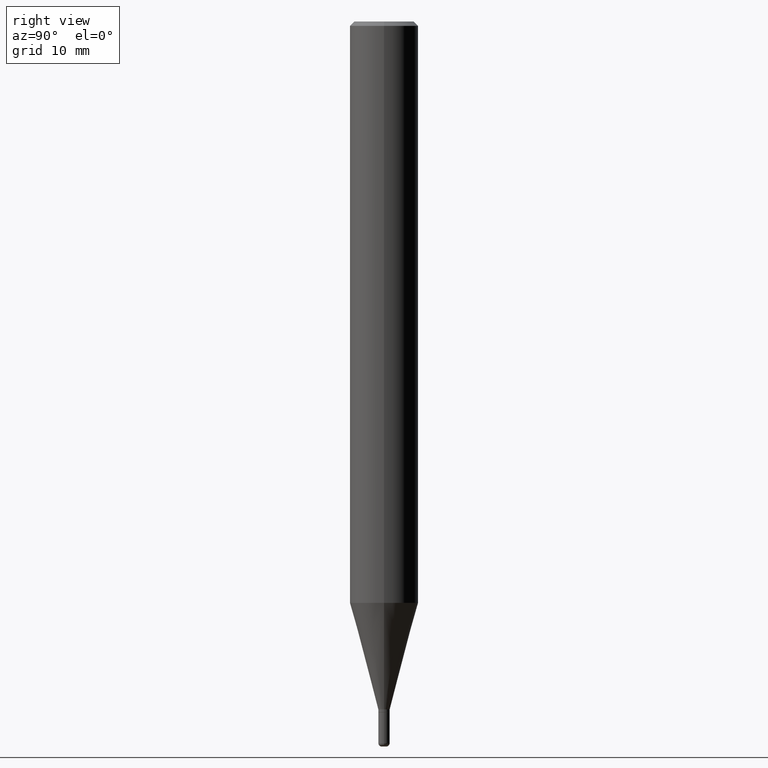
[diagram: clean part render]
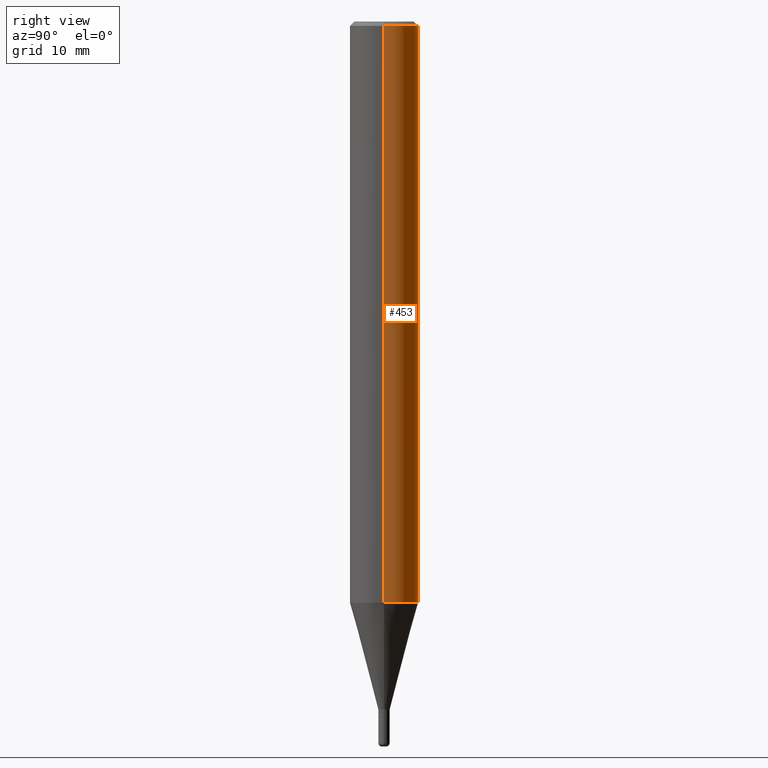
[diagram: same view with one face highlighted and labeled with its STEP entity id]
A machine part, right view. The second image highlights one B-rep face of the part: STEP entity #453.
In plain terms, the highlighted cylindrical surface (edge-blend (fillet) strip) has radius 2.9997 mm, axis along (-0, 0, 1).
Its self-contained STEP definition (entity closure, byte-faithful):
#30 = ORIENTED_EDGE ( 'NONE', *, *, #186, .F. ) ;
#51 = AXIS2_PLACEMENT_3D ( 'NONE', #350, #497, #137 ) ;
#63 = CARTESIAN_POINT ( 'NONE',  ( -0.1180999999999999966, -2.686662453997805181E-15, -0.01499999999999995781 ) ) ;
#65 = ORIENTED_EDGE ( 'NONE', *, *, #469, .T. ) ;
#66 = CARTESIAN_POINT ( 'NONE',  ( 0.1180999999999999966, -8.246878922347480654E-16, 5.758764772215000440E-30 ) ) ;
#93 = CIRCLE ( 'NONE', #386, 0.1180999999999999966 ) ;
#95 = LINE ( 'NONE', #302, #403 ) ;
#100 = VERTEX_POINT ( 'NONE', #63 ) ;
#127 = VERTEX_POINT ( 'NONE', #384 ) ;
#128 = VERTEX_POINT ( 'NONE', #425 ) ;
#137 = DIRECTION ( 'NONE',  ( 1.000000000000000000, -6.982962677686266711E-15, 4.876176775795936353E-29 ) ) ;
#141 = CYLINDRICAL_SURFACE ( 'NONE', #51, 0.1180999999999999966 ) ;
#154 = EDGE_LOOP ( 'NONE', ( #228, #65, #309, #30 ) ) ;
#169 = DIRECTION ( 'NONE',  ( 1.000000000000000000, -6.982962677686265133E-15, 0.000000000000000000 ) ) ;
#186 = EDGE_CURVE ( 'NONE', #474, #127, #222, .T. ) ;
#213 = DIRECTION ( 'NONE',  ( 1.000000000000000000, -6.982962677686266711E-15, 0.000000000000000000 ) ) ;
#216 = AXIS2_PLACEMENT_3D ( 'NONE', #219, #412, #213 ) ;
#219 = CARTESIAN_POINT ( 'NONE',  ( 3.668203209277694140E-31, -5.237222008264703607E-17, -0.01499999999999995781 ) ) ;
#222 = LINE ( 'NONE', #66, #363 ) ;
#227 = CARTESIAN_POINT ( 'NONE',  ( 0.1180999999999999966, -7.823942522013067545E-15, -2.004666200535222487 ) ) ;
#228 = ORIENTED_EDGE ( 'NONE', *, *, #427, .T. ) ;
#239 = EDGE_CURVE ( 'NONE', #127, #100, #347, .T. ) ;
#252 = DIRECTION ( 'NONE',  ( -2.445468806185136877E-29, 3.491481338843145188E-15, 1.000000000000000000 ) ) ;
#264 = DIRECTION ( 'NONE',  ( -2.445468806185136597E-29, 3.491481338843145583E-15, 1.000000000000000000 ) ) ;
#302 = CARTESIAN_POINT ( 'NONE',  ( -0.1180999999999999966, 8.391509709326782957E-16, -5.809262341591043784E-30 ) ) ;
#309 = ORIENTED_EDGE ( 'NONE', *, *, #239, .F. ) ;
#344 = FACE_OUTER_BOUND ( 'NONE', #154, .T. ) ;
#347 = CIRCLE ( 'NONE', #216, 0.1180999999999999966 ) ;
#350 = CARTESIAN_POINT ( 'NONE',  ( 0.000000000000000000, 0.000000000000000000, 0.000000000000000000 ) ) ;
#363 = VECTOR ( 'NONE', #252, 39.37007874015748143 ) ;
#384 = CARTESIAN_POINT ( 'NONE',  ( 0.1180999999999999966, -8.770601123173951446E-16, -0.01499999999999995781 ) ) ;
#386 = AXIS2_PLACEMENT_3D ( 'NONE', #495, #264, #169 ) ;
#403 = VECTOR ( 'NONE', #465, 39.37007874015748143 ) ;
#412 = DIRECTION ( 'NONE',  ( -2.445468806185136597E-29, 3.491481338843145583E-15, 1.000000000000000000 ) ) ;
#425 = CARTESIAN_POINT ( 'NONE',  ( -0.1180999999999999966, -6.160103658845641874E-15, -2.004666200535222487 ) ) ;
#427 = EDGE_CURVE ( 'NONE', #474, #128, #93, .T. ) ;
#453 = ADVANCED_FACE ( 'NONE', ( #344 ), #141, .T. ) ;
#465 = DIRECTION ( 'NONE',  ( -2.445468806185136877E-29, 3.491481338843145188E-15, 1.000000000000000000 ) ) ;
#469 = EDGE_CURVE ( 'NONE', #128, #100, #95, .T. ) ;
#474 = VERTEX_POINT ( 'NONE', #227 ) ;
#495 = CARTESIAN_POINT ( 'NONE',  ( 4.902348660222563893E-29, -6.999254629778320071E-15, -2.004666200535222487 ) ) ;
#497 = DIRECTION ( 'NONE',  ( -2.445468806185136597E-29, 3.491481338843145583E-15, 1.000000000000000000 ) ) ;